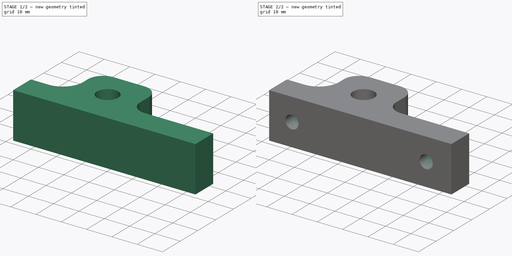
[diagram: build sequence overview — one tinted view per stage of 2, left to right]
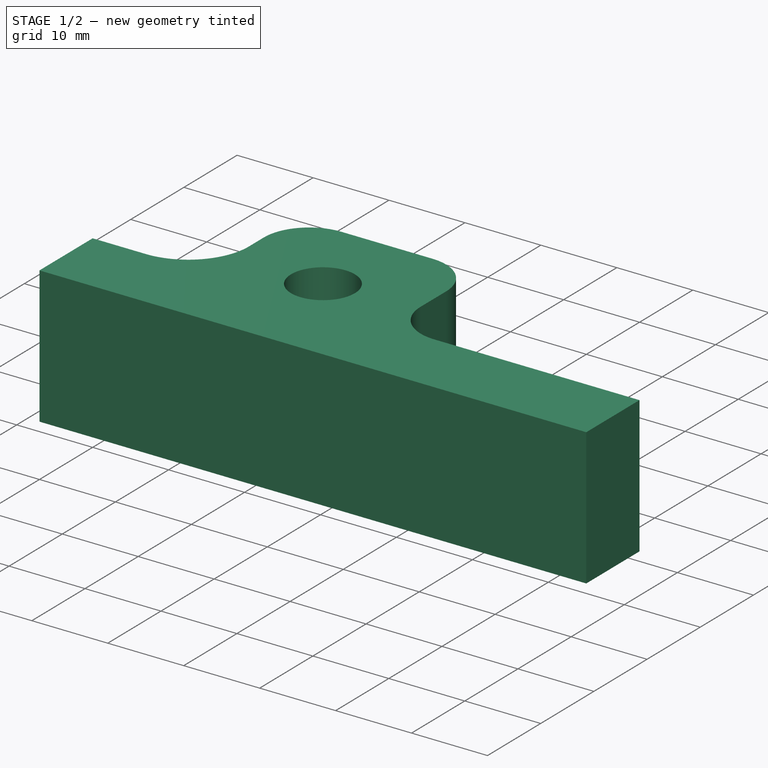
[diagram: stage 1 of 2 — iso view after this stage's code; geometry added in this stage tinted green]
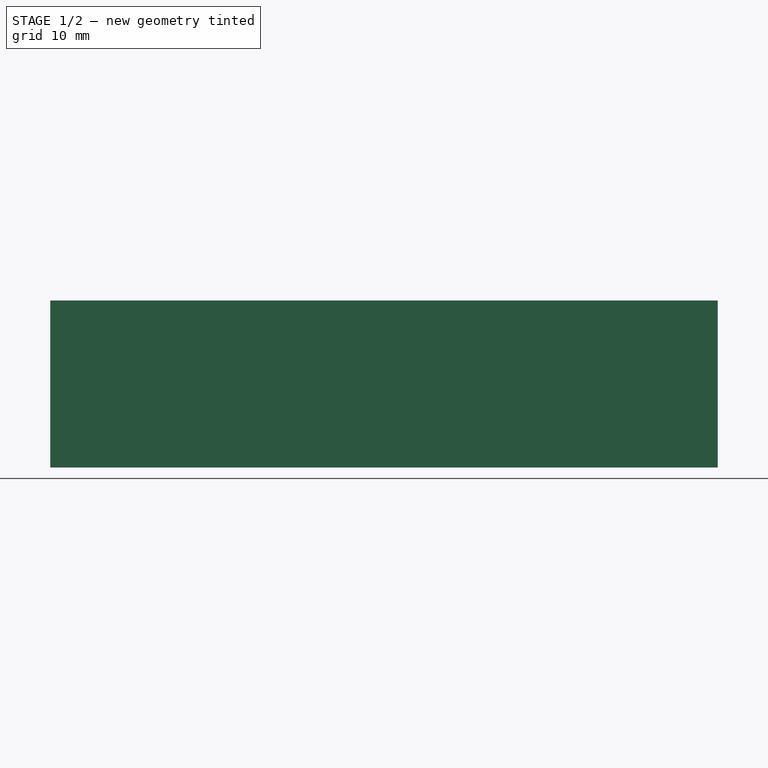
[diagram: stage 1 of 2 — front view after this stage's code; geometry added in this stage tinted green]
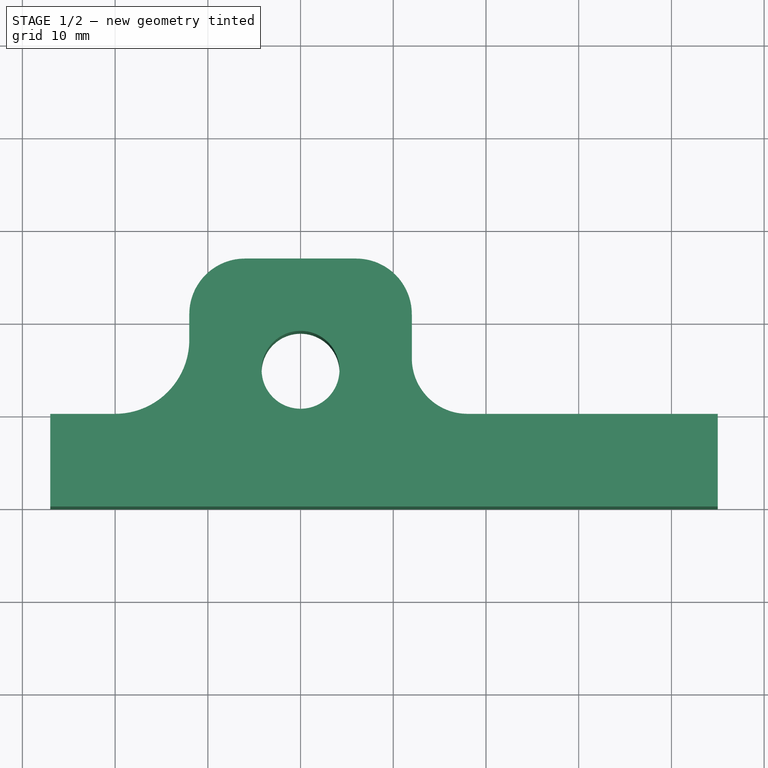
[diagram: stage 1 of 2 — top view after this stage's code; geometry added in this stage tinted green]
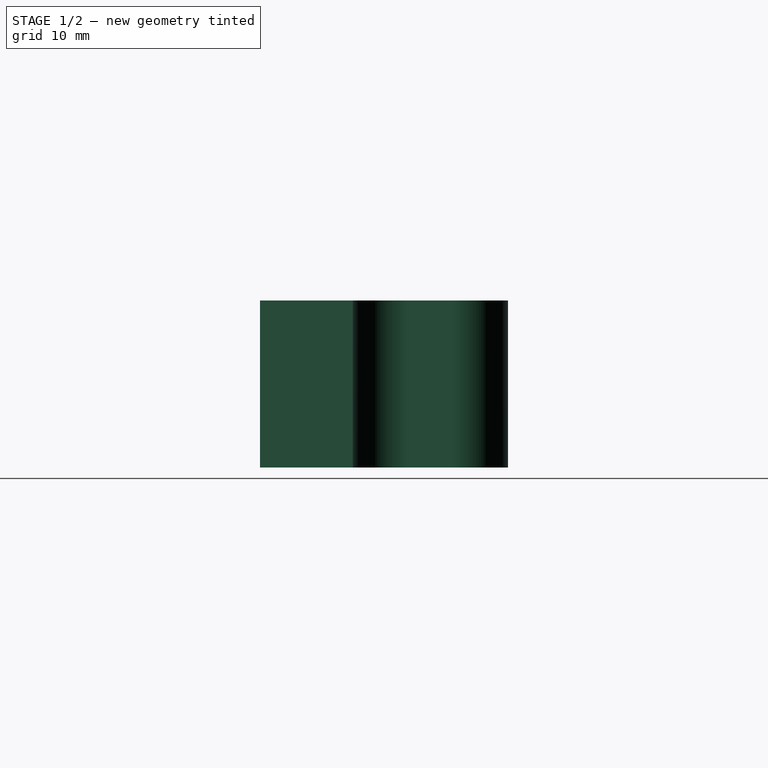
[diagram: stage 1 of 2 — right view after this stage's code; geometry added in this stage tinted green]
FCSTD DOCUMENT  (FreeCAD 0.16R4928 (Git))
Label: worm_mount
License: CC-BY 3.0
LicenseURL: http://creativecommons.org/licenses/by/3.0/
objects: Sketcher::SketchObject×4, PartDesign::Pocket×3, PartDesign::Pad×1, PartDesign::Fillet×1
note: 13 computed .brp shape members not serialized (recipe doc carries the construction recipe); baked Part::Feature solids carry a one-line shape summary decoded from their .brp

FEATURE [Sketcher::SketchObject] Sketch  label="baseShapeSketch"
  sketch-geometry (14):
    g0: LineSegment StartX=-6 StartY=26.75 StartZ=0 EndX=6 EndY=26.75 EndZ=0
    g1: LineSegment StartX=12 StartY=20.75 StartZ=0 EndX=12 EndY=16 EndZ=0
    g2: LineSegment StartX=-27 StartY=10 StartZ=0 EndX=-20 EndY=10 EndZ=0
    g3: LineSegment StartX=45 StartY=10 StartZ=0 EndX=45 EndY=0 EndZ=0
    g4: LineSegment StartX=-27 StartY=0 StartZ=0 EndX=-27 EndY=10 EndZ=0
    g5: LineSegment StartX=18 StartY=10 StartZ=0 EndX=45 EndY=10 EndZ=0
    g6: LineSegment StartX=-12 StartY=18 StartZ=0 EndX=-12 EndY=20.75 EndZ=0
    g7: LineSegment StartX=45 StartY=0 StartZ=0 EndX=-27 EndY=0 EndZ=0
    g8: Circle [constr] CenterX=0 CenterY=14.75 CenterZ=0 NormalX=0 NormalY=0 NormalZ=1 Radius=8.2
    g9: Circle CenterX=0 CenterY=14.75 CenterZ=0 NormalX=0 NormalY=0 NormalZ=1 Radius=4.2
    g10: ArcOfCircle CenterX=18 CenterY=16 CenterZ=0 NormalX=0 NormalY=0 NormalZ=1 Radius=6 StartAngle=3.14159 EndAngle=4.71239
    g11: ArcOfCircle CenterX=-20 CenterY=18 CenterZ=0 NormalX=0 NormalY=0 NormalZ=1 Radius=8 StartAngle=4.71239 EndAngle=6.28319
    g12: ArcOfCircle CenterX=6 CenterY=20.75 CenterZ=0 NormalX=0 NormalY=0 NormalZ=1 Radius=6 StartAngle=0 EndAngle=1.5708
    g13: ArcOfCircle CenterX=-6 CenterY=20.75 CenterZ=0 NormalX=0 NormalY=0 NormalZ=1 Radius=6 StartAngle=1.5708 EndAngle=3.14159
  constraints (37):
    c: Horizontal(g0)
    c: Coincident(g5,g3)
    c: Coincident(g7,g4)
    c: Coincident(g4,g2)
    c: Horizontal(g2)
    c: Vertical(g3)
    c: Vertical(g4)
    c: Horizontal(g5)
    c: Vertical(g6)
    c: Horizontal(g7)
    c: PointOnObject(g8,g-2)
    c: Equal(g3,g4)
    c: Radius(g8) = 8.2
    c: Coincident(g9,g8)
    c: Radius(g9) = 4.2
    c: DistanceY(g3) = -10
    c: Tangent(g1,g10)
    c: Tangent(g5,g10)
    c: Tangent(g2,g11)
    c: Tangent(g6,g11)
    c: Tangent(g0,g12)
    c: Tangent(g1,g12)
    c: Tangent(g0,g13)
    c: Tangent(g6,g13)
    c: Radius(g13) = 6
    c: Equal(g12,g13)
    c: DistanceY(g0,g8) = -12
    c: Coincident(g7,g3)
    c: PointOnObject(g3,g-1)
    c: DistanceX(g6,g2) = -15
    c: Vertical(g1)
    c: DistanceX(g6,g8) = 12
    c: Radius(g11) = 8
    c: DistanceX(g8,g3) = 45
    c: DistanceX(g8,g1) = 12
    c: Radius(g10) = 6
    c: DistanceY(g-1,g8) = 14.75
FEATURE [PartDesign::Pad] Pad  label="baseShape"
  Length = 18
  Length2 = 10
  Midplane = true
  Sketch = -> Sketch
  Type = 0
FEATURE [Sketcher::SketchObject] Sketch001  label="M5CountersinkSketch"
  ExternalGeometry = -> [Fillet]
  Placement = pos=(0,10,0) rot=(0,0.707107,0.707107;3.14159rad)
  Support = -> Fillet [Face2]
  sketch-geometry (2):
    g0: Circle CenterX=-35 CenterY=0 CenterZ=0 NormalX=0 NormalY=0 NormalZ=1 Radius=4.5
    g1: Circle CenterX=18 CenterY=0 CenterZ=0 NormalX=0 NormalY=0 NormalZ=1 Radius=4.5
  constraints (6):
    c: PointOnObject(g0,g-1)
    c: PointOnObject(g1,g-1)
    c: Equal(g1,g0)
    c: Radius(g1) = 4.5
    c: Coincident(g1,g-3)
    c: Coincident(g0,g-4)
FEATURE [Sketcher::SketchObject] Sketch006  label="bearingPocketSketch"
  ExternalGeometry = -> [Fillet]
  Placement = pos=(0,0,9) rot=(0,0,1;0rad)
  Support = -> Fillet [Face17]
  sketch-geometry (1):
    g0: Circle CenterX=0 CenterY=14.75 CenterZ=0 NormalX=0 NormalY=0 NormalZ=1 Radius=8.2
  constraints (2):
    c: Radius(g0) = 8.2
    c: Coincident(g0,g-3)
FEATURE [PartDesign::Pocket] Pocket001
  Length = 11
  Midplane = true
  Sketch = -> Sketch001
  Type = 0
FEATURE [PartDesign::Pocket] Pocket002
  Length = 5.1
  Sketch = -> Sketch006
  Type = 0
FEATURE [PartDesign::Fillet] Fillet
  Base = -> Pocket002 [Edge34,Edge40]
  Radius = 3
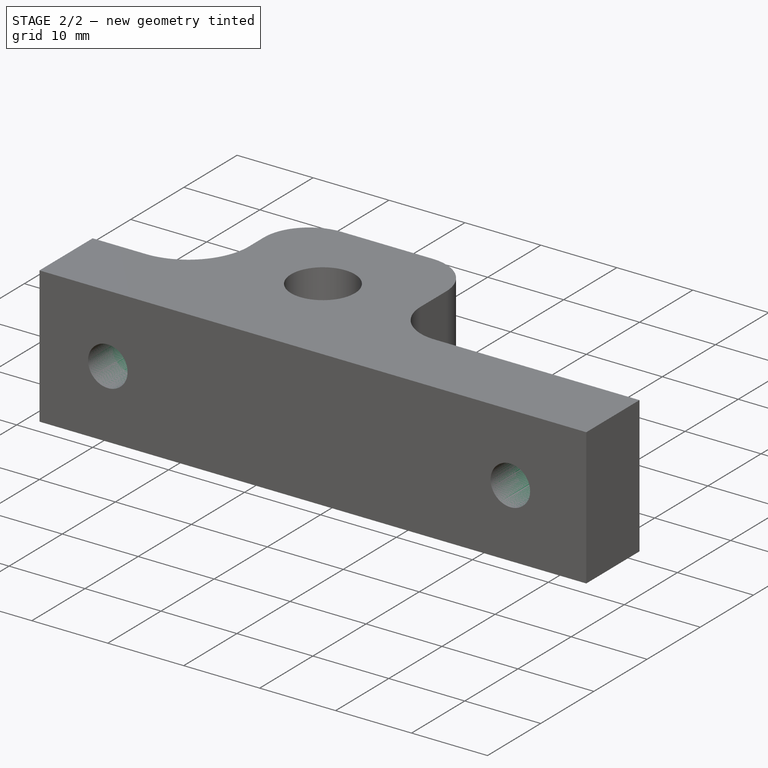
[diagram: stage 2 of 2 — iso view after this stage's code; geometry added in this stage tinted green]
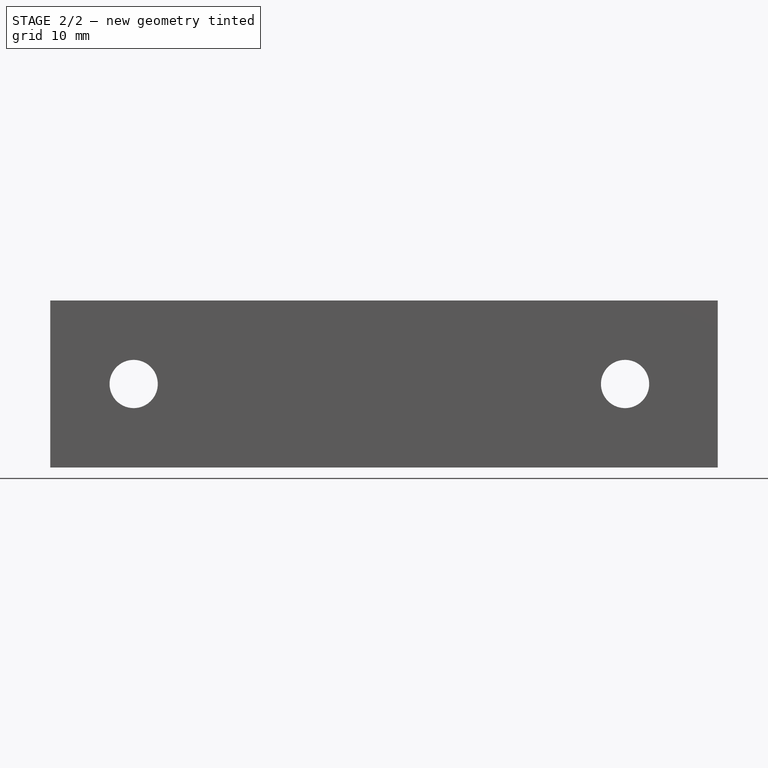
[diagram: stage 2 of 2 — front view after this stage's code; geometry added in this stage tinted green]
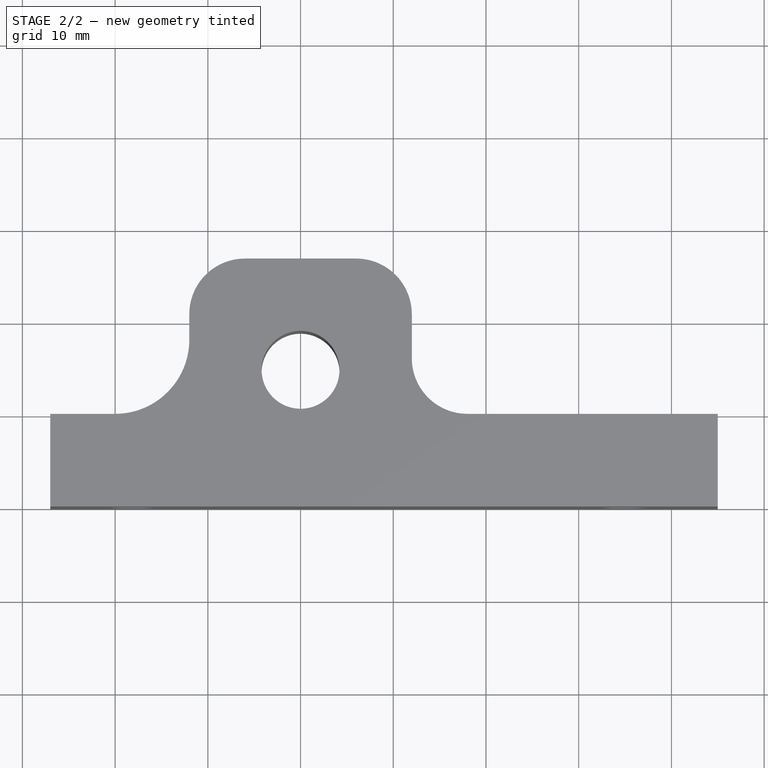
[diagram: stage 2 of 2 — top view after this stage's code; geometry added in this stage tinted green]
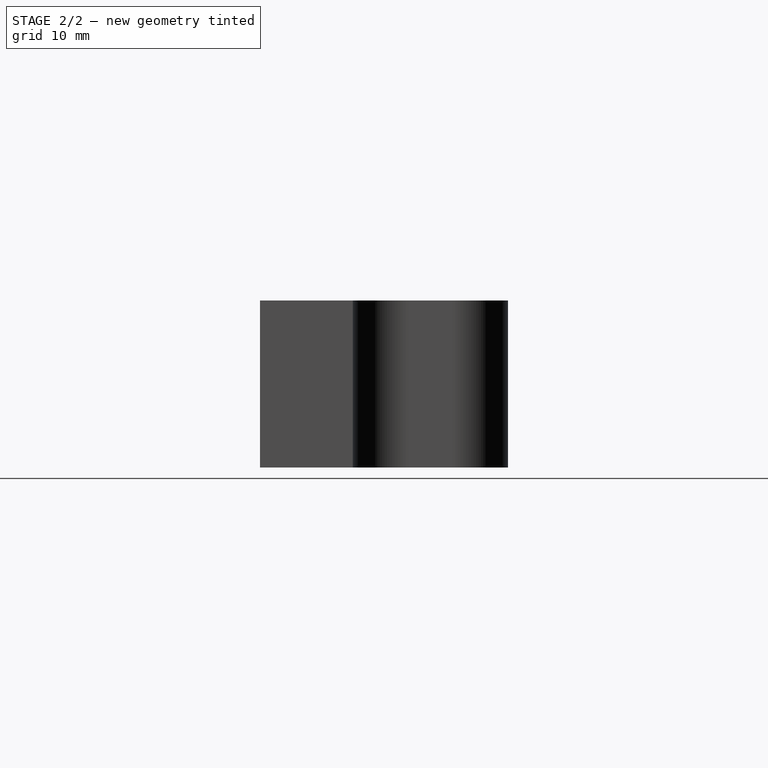
[diagram: stage 2 of 2 — right view after this stage's code; geometry added in this stage tinted green]
FEATURE [Sketcher::SketchObject] Sketch005
  ExternalGeometry = -> [Pad]
  Placement = pos=(0,10,0) rot=(0,0.707107,0.707107;3.14159rad)
  Support = -> Pad [Face9]
  sketch-geometry (2):
    g0: Circle CenterX=-35 CenterY=0 CenterZ=0 NormalX=0 NormalY=0 NormalZ=1 Radius=2.6
    g1: Circle CenterX=18 CenterY=0 CenterZ=0 NormalX=0 NormalY=0 NormalZ=1 Radius=2.6
  constraints (6):
    c: PointOnObject(g0,g-1)
    c: Equal(g0,g1)
    c: Radius(g1) = 2.6
    c: PointOnObject(g1,g-1)
    c: DistanceX(g1,g-3) = 9
    c: DistanceX(g0,g-4) = -10
FEATURE [PartDesign::Pocket] Pocket  label="M5Holes"
  Length = 5
  Midplane = true
  Sketch = -> Sketch005
  Type = 1
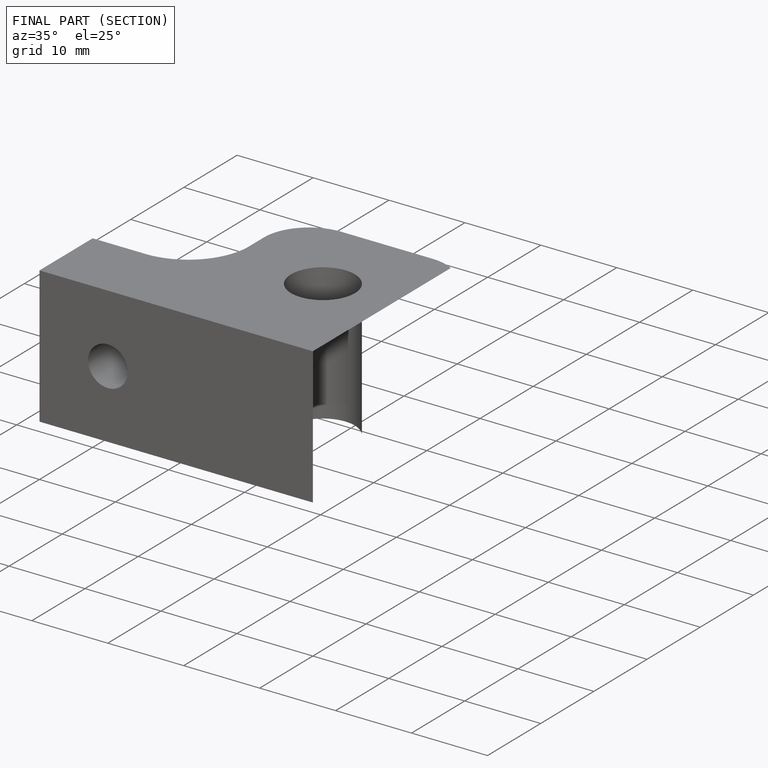
[diagram: finished part — half-section view (interior)]
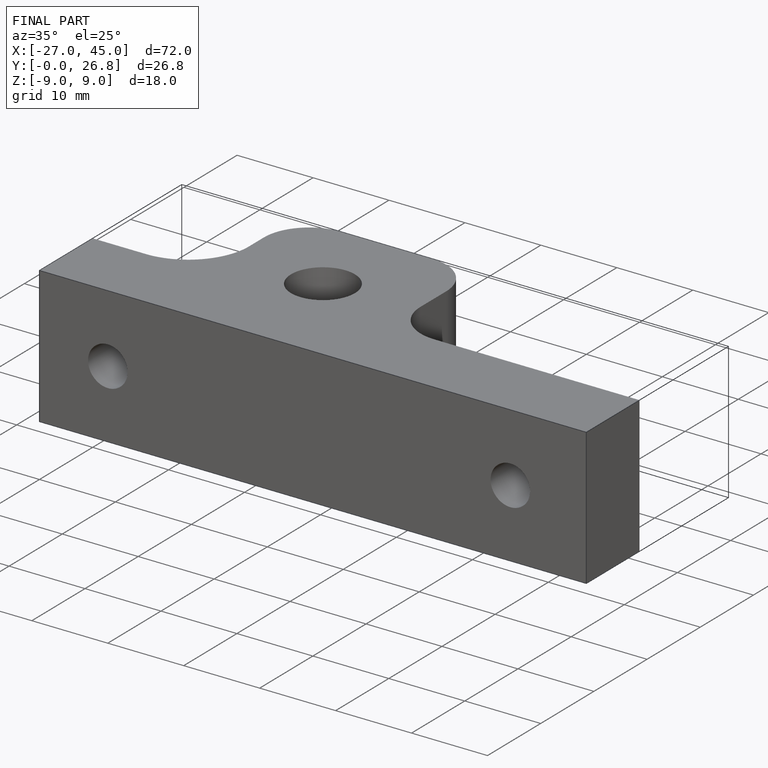
[diagram: finished part — iso view with bounding-box wireframe]
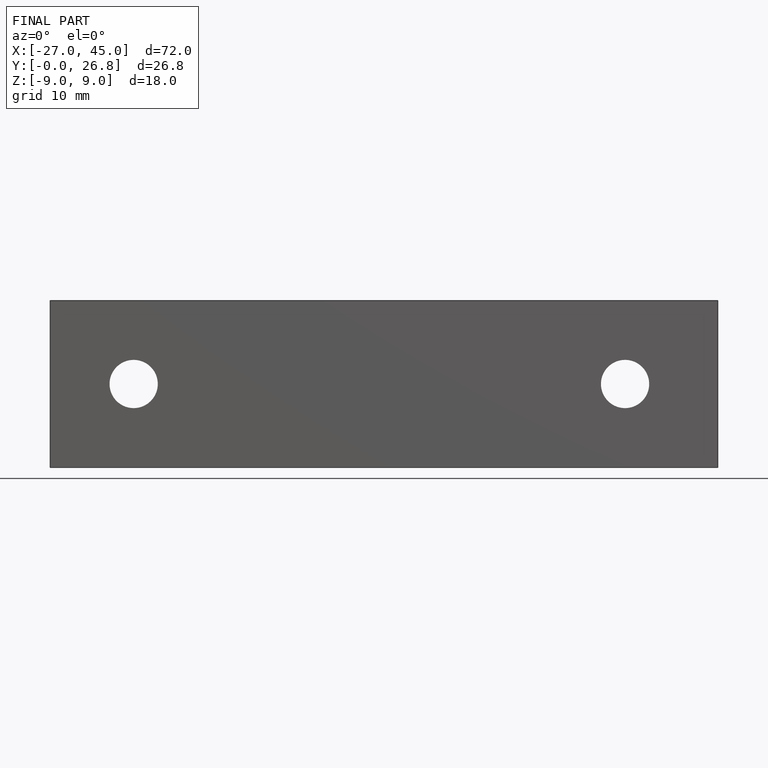
[diagram: finished part — front view with bounding-box wireframe]
